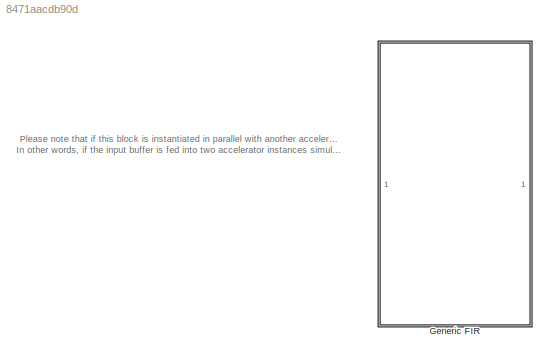
MODEL slx_8471aacdb90d
KIND library
CONFIG AbsTol = auto
CONFIG EnableMultiTasking = off
CONFIG FixedStep = auto
CONFIG MaxStep = auto
CONFIG MinStep = auto
CONFIG RelTol = 1e-3
CONFIG SampleTimeConstraint = Unconstrained
CONFIG SolverName = VariableStepAuto
CONFIG StartTime = 0.0
CONFIG StopTime = 10.0
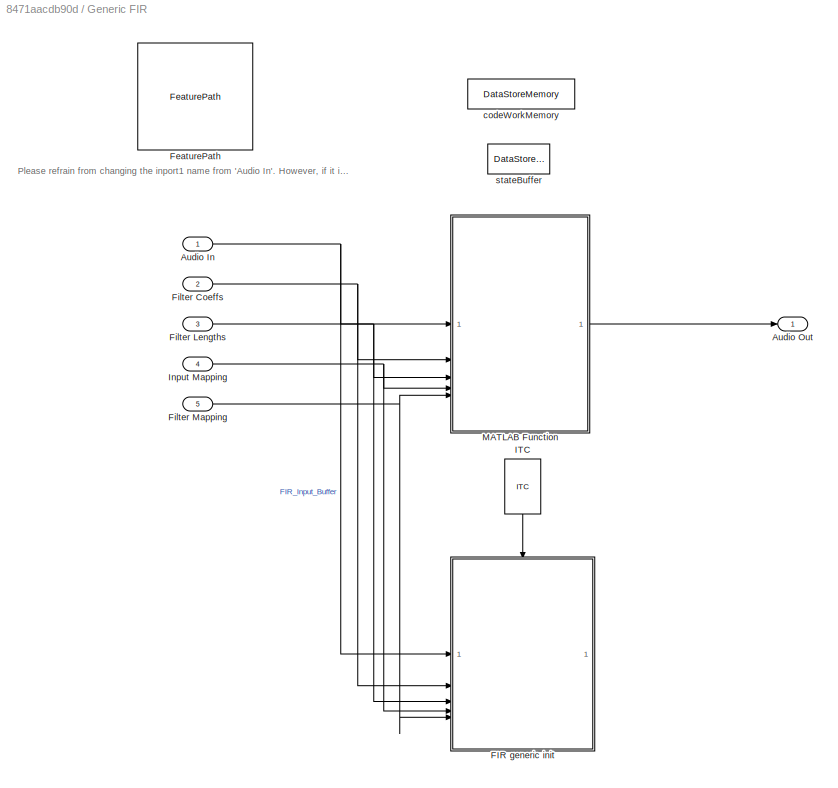
BLOCK [SubSystem] Generic FIR
BLOCK [Inport] Generic FIR/Audio In
BLOCK [Outport] Generic FIR/Audio Out
  VectorParamsAs1DForOutWhenUnconnected = off
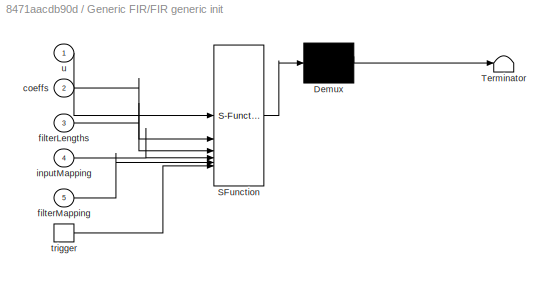
BLOCK [SubSystem] Generic FIR/FIR generic init
  ErrorFcn = Stateflow.Translate.translate
  PermitHierarchicalResolution = ExplicitOnly
  RTWFcnName = foo
  RTWFcnNameOpts = User specified
  SFBlockType = MATLAB Function
  TreatAsAtomicUnit = on
BLOCK [Demux] Generic FIR/FIR generic init/ Demux 
  Outputs = 1
BLOCK [S-Function] Generic FIR/FIR generic init/ SFunction 
  EnableBusSupport = off
  FunctionName = sf_sfun
  Parameters = variantSelect
  PortCounts = [6 1]
  SFcnIsStateOwnerBlock = off
  SFunctionDeploymentMode = off
  Tag = Stateflow S-Function 1
BLOCK [Terminator] Generic FIR/FIR generic init/ Terminator 
BLOCK [Inport] Generic FIR/FIR generic init/coeffs
  Port = 2
BLOCK [Inport] Generic FIR/FIR generic init/filterLengths
  Port = 3
BLOCK [Inport] Generic FIR/FIR generic init/filterMapping
  Port = 5
BLOCK [Inport] Generic FIR/FIR generic init/inputMapping
  Port = 4
BLOCK [TriggerPort] Generic FIR/FIR generic init/trigger
  ShowOutputPort = on
  StatesWhenEnabling = held
  TriggerType = function-call
  VariantControl = (inherit)
BLOCK [Inport] Generic FIR/FIR generic init/u
BLOCK [Reference] Generic FIR/FeaturePath  REF=FeaturePath/FeaturePath
  SourceBlock = FeaturePath/FeaturePath
  SourceProductName = Bose Talaria
  SourceType = Talaria Feature Path
BLOCK [Inport] Generic FIR/Filter Coeffs
  Port = 2
BLOCK [Inport] Generic FIR/Filter Lengths
  Port = 3
BLOCK [Inport] Generic FIR/Filter Mapping
  Port = 5
BLOCK [Reference] Generic FIR/ITC  REF=ITC/ITC
  NameLocation = left
  SourceBlock = ITC/ITC
  SourceProductName = Bose Talaria
  SourceType = Talaria Initialization Trigger Control
BLOCK [Inport] Generic FIR/Input Mapping
  Port = 4
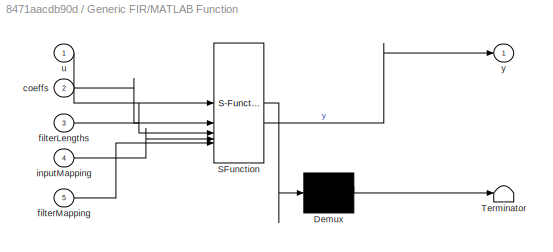
BLOCK [SubSystem] Generic FIR/MATLAB Function
  ErrorFcn = Stateflow.Translate.translate
  PermitHierarchicalResolution = ExplicitOnly
  SFBlockType = MATLAB Function
  TreatAsAtomicUnit = on
BLOCK [Demux] Generic FIR/MATLAB Function/ Demux 
  Outputs = 1
BLOCK [S-Function] Generic FIR/MATLAB Function/ SFunction 
  EnableBusSupport = off
  FunctionName = sf_sfun
  Parameters = variantSelect
  PortCounts = [5 2]
  SFcnIsStateOwnerBlock = off
  SFunctionDeploymentMode = off
  Tag = Stateflow S-Function 2
BLOCK [Terminator] Generic FIR/MATLAB Function/ Terminator 
BLOCK [Inport] Generic FIR/MATLAB Function/coeffs
  Port = 2
BLOCK [Inport] Generic FIR/MATLAB Function/filterLengths
  Port = 3
BLOCK [Inport] Generic FIR/MATLAB Function/filterMapping
  Port = 5
BLOCK [Inport] Generic FIR/MATLAB Function/inputMapping
  Port = 4
BLOCK [Inport] Generic FIR/MATLAB Function/u
BLOCK [Outport] Generic FIR/MATLAB Function/y
  VectorParamsAs1DForOutWhenUnconnected = off
BLOCK [DataStoreMemory] Generic FIR/codeWorkMemory
  DataStoreName = codeWorkMemory
  EmbeddedSignalClassName = Blocklib.Signal
  InitialValue = zeros(1,codeWorkMemorySize)
  OutDataTypeStr = uint32
  ShowAdditionalParam = off
  SignalType = real
  WriteAfterWriteMsg = warning
BLOCK [DataStoreMemory] Generic FIR/stateBuffer
  DataStoreName = states
  EmbeddedSignalClassName = Blocklib.Signal
  InitialValue = zeros(stateBufferSize,1)
  OutDataTypeStr = single
  ReadBeforeWriteMsg = warning
  ShowAdditionalParam = off
  SignalType = real
  WriteAfterReadMsg = warning
  WriteAfterWriteMsg = warning
ANNOTATION (root): Please note that if this block is instantiated in parallel with another accelerator instance (FIR/IIR), it would result in redundancy. In other words, if the input buffer is fed into two accelerator instances simultaneously, it would result in the creation of a duplicate buffer to have unique input buffer for each accelerator instance.
ANNOTATION Generic FIR: Please refrain from changing the inport1 name from 'Audio In'. However, if it is unavoidable, please update the code at line 65 in FirGenericMask.m
CHART Generic FIR/FIR generic init states=1 transitions=1
  STATE_LABEL 'eML_blk_kernel()'
  STATE_LABEL 'SCRIPT:\nfunction fir_generic_init(u,coeffs, filterLengths, inputMapping, filterMapping, variantSelect)\n\n% Generic FIR function to work with M inputs, N outputs and K filters\n%\n% Parameters:\n%   u:              input channels [frame size x number of inputs]\n%   coeffs:         coefficient sets [total filter lengths x 1]\n%   filterLengths:  array of filter lengths [number of filters x 1]\n%   inputMa...<+3136ch>'
CHART Generic FIR/MATLAB Function states=1 transitions=1
  STATE_LABEL 'eML_blk_kernel()'
  STATE_LABEL 'SCRIPT:\nfunction y = fir_generic(u, coeffs, filterLengths, inputMapping, filterMapping, variantSelect)\n% Generic FIR function to work with M inputs, N outputs and K filters\n%\n% Parameters:\n%   u:              input channels [frame size x number of inputs]\n%   coeffs:         coefficient sets [total filter lengths x 1]\n%   filterLengths:  array of filter lengths [number of filters x 1]\n%   inputMap...<+2647ch>'
CHART  states=0 transitions=0
CHART  states=0 transitions=0
